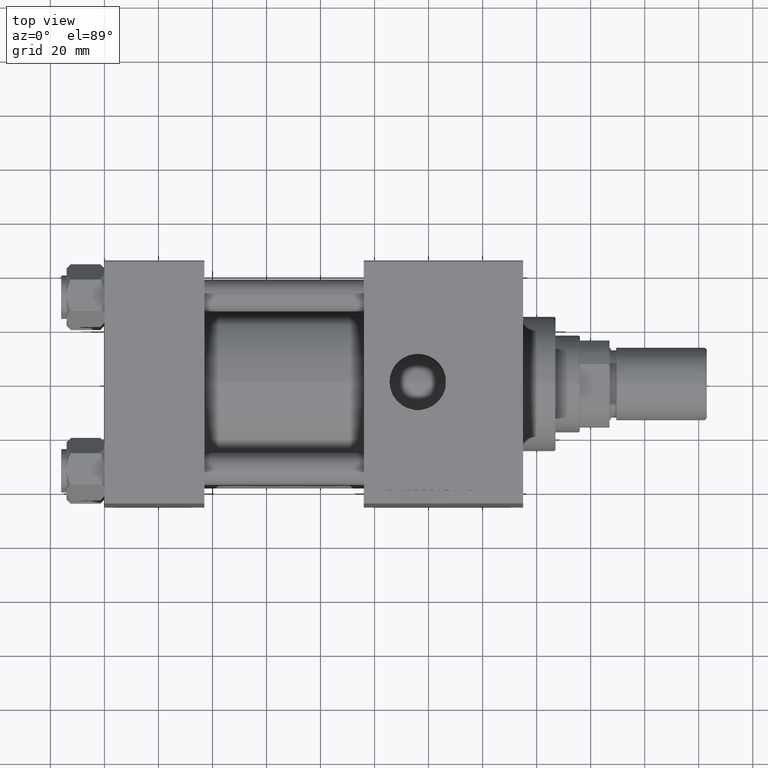
[diagram: clean part render]
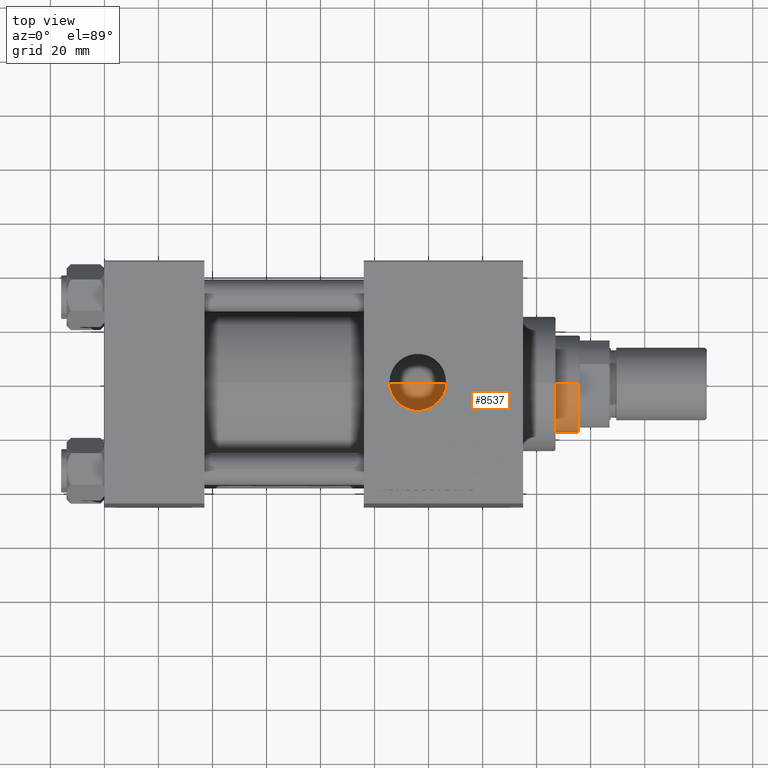
[diagram: same view with one face highlighted and labeled with its STEP entity id]
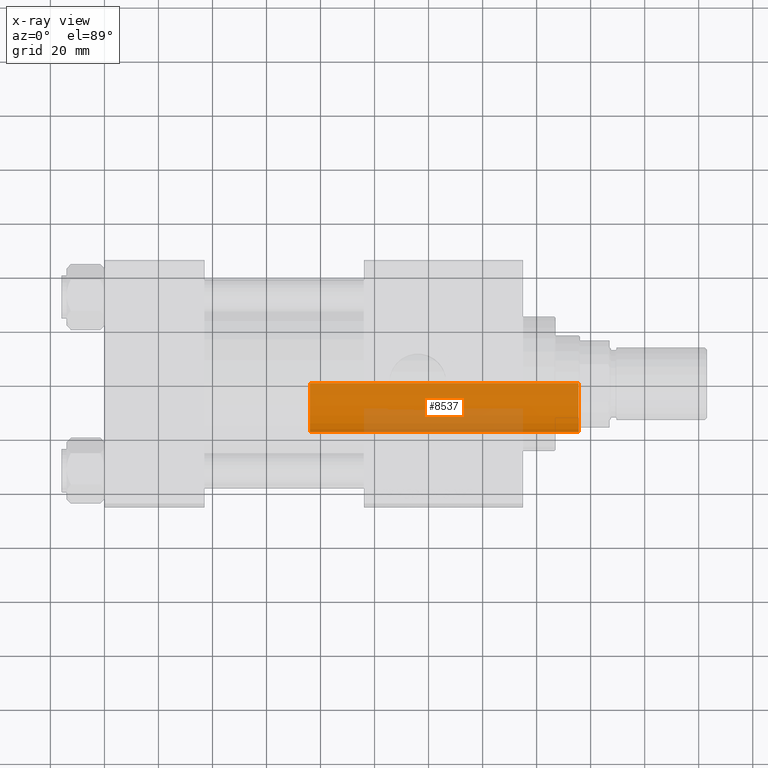
[diagram: x-ray of the same camera — body ghosted, the highlighted face saturated]
A machine part, top view. The second image highlights one B-rep face of the part: STEP entity #8537.
The next image is the same camera in x-ray: the body ghosted, the highlighted face saturated — about 28% of this face is hidden behind the body in this view.
In plain terms, the highlighted cylindrical surface (partial cylindrical patch) has radius 18 mm, axis along (-1, 0, 0).
Its self-contained STEP definition (entity closure, byte-faithful):
#646 = AXIS2_PLACEMENT_3D ( 'NONE', #9119, #12959, #32973 ) ;
#2393 = CARTESIAN_POINT ( 'NONE',  ( 0.000000000000000000, 0.000000000000000000, 139.0000000000000000 ) ) ;
#5069 = CARTESIAN_POINT ( 'NONE',  ( 0.000000000000000000, 0.000000000000000000, 39.00000000000000000 ) ) ;
#5968 = DIRECTION ( 'NONE',  ( -1.000000000000000000, 0.000000000000000000, 0.000000000000000000 ) ) ;
#6712 = CARTESIAN_POINT ( 'NONE',  ( 18.00000000000000000, 2.204364238465235428E-15, 39.00000000000000000 ) ) ;
#8537 = ADVANCED_FACE ( 'NONE', ( #48536 ), #24939, .T. ) ;
#9119 = CARTESIAN_POINT ( 'NONE',  ( 0.000000000000000000, 0.000000000000000000, 138.5000000000000000 ) ) ;
#9200 = DIRECTION ( 'NONE',  ( -0.000000000000000000, -0.000000000000000000, -1.000000000000000000 ) ) ;
#9586 = EDGE_LOOP ( 'NONE', ( #23719, #25976, #42380, #46297 ) ) ;
#12959 = DIRECTION ( 'NONE',  ( 0.000000000000000000, 0.000000000000000000, -1.000000000000000000 ) ) ;
#13328 = VERTEX_POINT ( 'NONE', #24701 ) ;
#13481 = EDGE_CURVE ( 'NONE', #47471, #13328, #36663, .T. ) ;
#15568 = VECTOR ( 'NONE', #50148, 1000.000000000000000 ) ;
#17304 = EDGE_CURVE ( 'NONE', #47471, #33521, #29278, .T. ) ;
#17552 = VECTOR ( 'NONE', #9200, 1000.000000000000000 ) ;
#23719 = ORIENTED_EDGE ( 'NONE', *, *, #17304, .T. ) ;
#24542 = DIRECTION ( 'NONE',  ( 0.000000000000000000, 0.000000000000000000, 1.000000000000000000 ) ) ;
#24701 = CARTESIAN_POINT ( 'NONE',  ( -18.00000000000000000, 0.000000000000000000, 39.00000000000000000 ) ) ;
#24939 = CYLINDRICAL_SURFACE ( 'NONE', #25595, 18.00000000000000000 ) ;
#25595 = AXIS2_PLACEMENT_3D ( 'NONE', #2393, #29540, #5968 ) ;
#25976 = ORIENTED_EDGE ( 'NONE', *, *, #42987, .T. ) ;
#27056 = CARTESIAN_POINT ( 'NONE',  ( 18.00000000000000000, 2.204364238465235428E-15, 139.0000000000000000 ) ) ;
#28687 = CARTESIAN_POINT ( 'NONE',  ( -18.00000000000000000, 0.000000000000000000, 139.0000000000000000 ) ) ;
#29278 = CIRCLE ( 'NONE', #646, 18.00000000000000000 ) ;
#29540 = DIRECTION ( 'NONE',  ( -0.000000000000000000, -0.000000000000000000, -1.000000000000000000 ) ) ;
#31956 = CIRCLE ( 'NONE', #38493, 18.00000000000000000 ) ;
#32973 = DIRECTION ( 'NONE',  ( 1.000000000000000000, 0.000000000000000000, 0.000000000000000000 ) ) ;
#33521 = VERTEX_POINT ( 'NONE', #43856 ) ;
#36663 = LINE ( 'NONE', #28687, #17552 ) ;
#38493 = AXIS2_PLACEMENT_3D ( 'NONE', #5069, #24542, #39957 ) ;
#39957 = DIRECTION ( 'NONE',  ( 1.000000000000000000, 0.000000000000000000, 0.000000000000000000 ) ) ;
#42309 = CARTESIAN_POINT ( 'NONE',  ( -18.00000000000000000, 0.000000000000000000, 138.5000000000000000 ) ) ;
#42380 = ORIENTED_EDGE ( 'NONE', *, *, #42712, .T. ) ;
#42712 = EDGE_CURVE ( 'NONE', #47777, #13328, #31956, .T. ) ;
#42987 = EDGE_CURVE ( 'NONE', #33521, #47777, #50412, .T. ) ;
#43856 = CARTESIAN_POINT ( 'NONE',  ( 18.00000000000000000, 2.204364238465235428E-15, 138.5000000000000000 ) ) ;
#46297 = ORIENTED_EDGE ( 'NONE', *, *, #13481, .F. ) ;
#47471 = VERTEX_POINT ( 'NONE', #42309 ) ;
#47777 = VERTEX_POINT ( 'NONE', #6712 ) ;
#48536 = FACE_OUTER_BOUND ( 'NONE', #9586, .T. ) ;
#50148 = DIRECTION ( 'NONE',  ( -0.000000000000000000, -0.000000000000000000, -1.000000000000000000 ) ) ;
#50412 = LINE ( 'NONE', #27056, #15568 ) ;